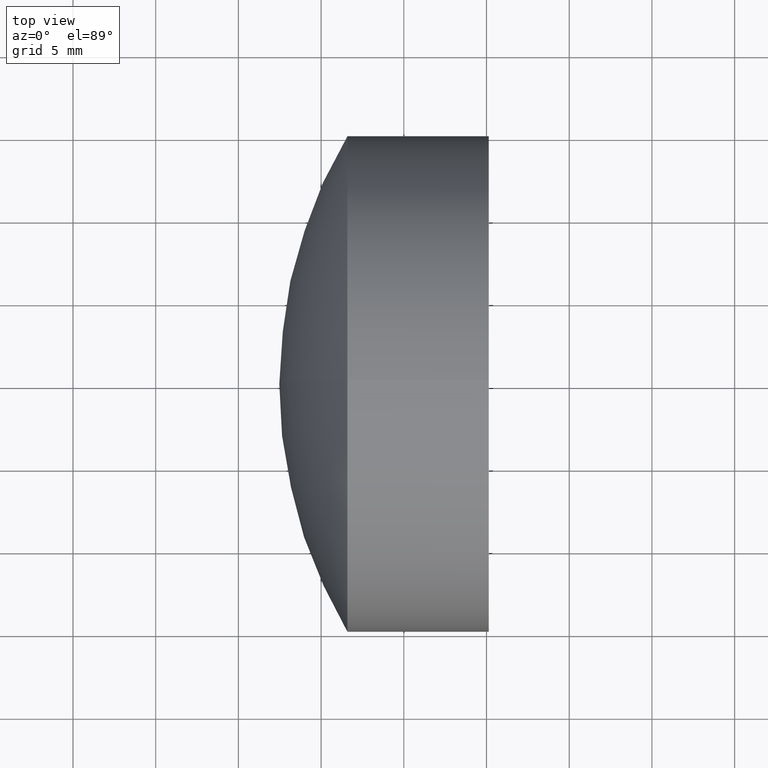
[diagram: clean part render]
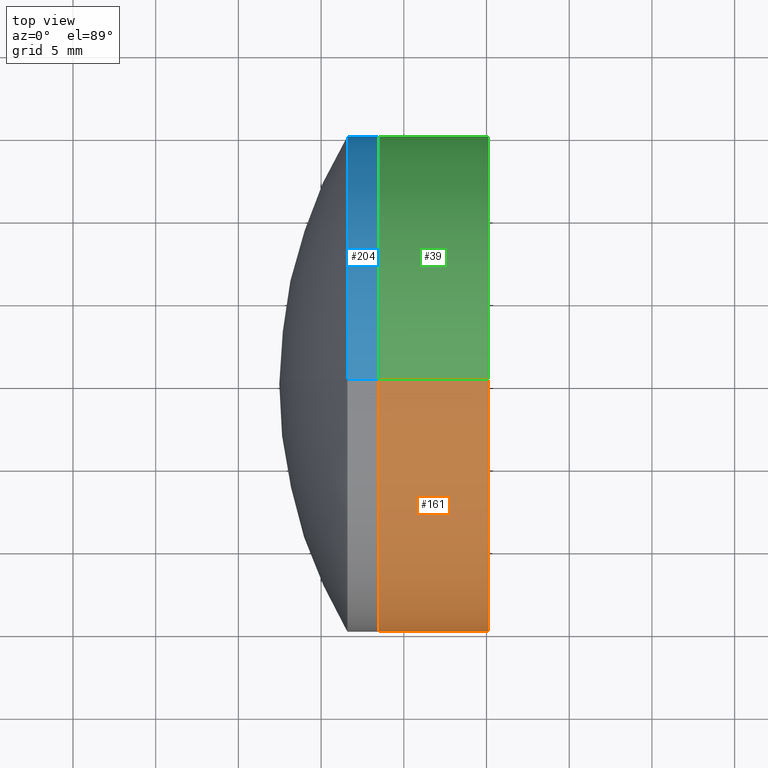
[diagram: same view with three faces highlighted in distinct colors, each labeled with its STEP entity id]
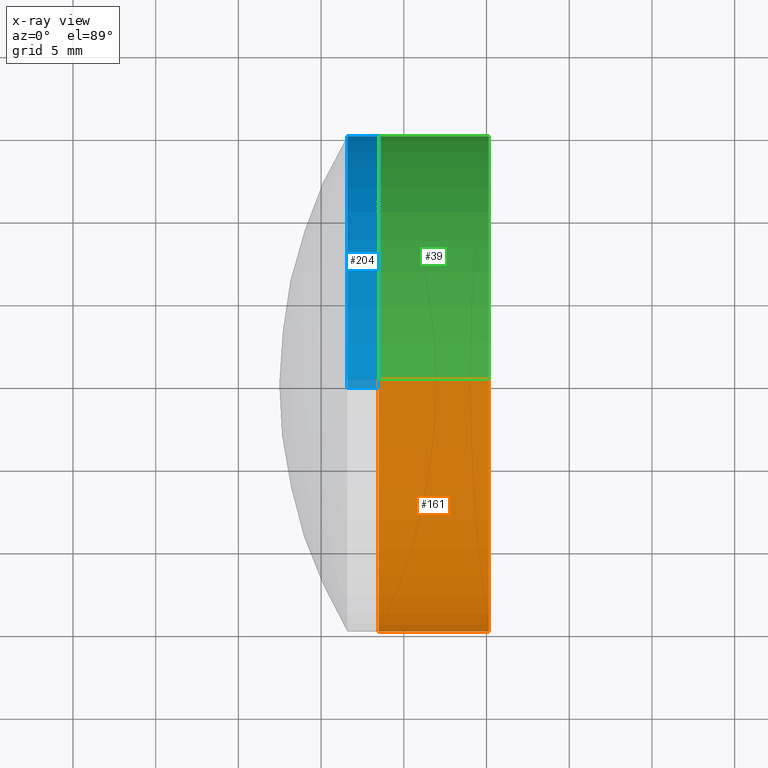
[diagram: x-ray of the same camera — body ghosted, the three highlighted faces saturated]
A machine part, top view with three faces highlighted in distinct colors.
The next image is the same camera in x-ray (body ghosted, the three faces saturated) — at least one of them is partly hidden behind the body in this view.
Their STEP definitions:

[orange] entity #161 — the highlighted cylindrical surface (partial cylindrical patch) has radius 15 mm, axis along (-1, -0, -0).
#4 = ORIENTED_EDGE ( 'NONE', *, *, #94, .F. ) ;
#11 = CARTESIAN_POINT ( 'NONE',  ( 105.1310777862640600, 0.0000000000000000000, -14.99999999999993600 ) ) ;
#19 = ORIENTED_EDGE ( 'NONE', *, *, #24, .T. ) ;
#21 = DIRECTION ( 'NONE',  ( -1.000000000000000000, -0.0000000000000000000, -0.0000000000000000000 ) ) ;
#24 = EDGE_CURVE ( 'NONE', #192, #129, #82, .T. ) ;
#43 = DIRECTION ( 'NONE',  ( -1.000000000000000000, -0.0000000000000000000, -0.0000000000000000000 ) ) ;
#54 = CARTESIAN_POINT ( 'NONE',  ( -0.5519199926577972300, 0.0000000000000000000, 15.00000000000000000 ) ) ;
#60 = CARTESIAN_POINT ( 'NONE',  ( 98.47493971991563900, 0.0000000000000000000, -15.00000000000000700 ) ) ;
#67 = DIRECTION ( 'NONE',  ( 0.0000000000000000000, 0.0000000000000000000, 1.000000000000000000 ) ) ;
#82 = CIRCLE ( 'NONE', #197, 15.00000000000000200 ) ;
#93 = CARTESIAN_POINT ( 'NONE',  ( 105.1310777862640600, 0.0000000000000000000, 0.0000000000000000000 ) ) ;
#94 = EDGE_CURVE ( 'NONE', #192, #230, #219, .T. ) ;
#121 = AXIS2_PLACEMENT_3D ( 'NONE', #206, #217, #218 ) ;
#123 = DIRECTION ( 'NONE',  ( -1.000000000000000000, -0.0000000000000000000, -0.0000000000000000000 ) ) ;
#124 = FACE_OUTER_BOUND ( 'NONE', #239, .T. ) ;
#129 = VERTEX_POINT ( 'NONE', #146 ) ;
#133 = CYLINDRICAL_SURFACE ( 'NONE', #333, 15.00000000000000000 ) ;
#134 = ORIENTED_EDGE ( 'NONE', *, *, #210, .T. ) ;
#136 = DIRECTION ( 'NONE',  ( -1.000000000000000000, -0.0000000000000000000, -0.0000000000000000000 ) ) ;
#146 = CARTESIAN_POINT ( 'NONE',  ( 105.1310777862640600, -1.836970198721021700E-015, 14.99999999999993600 ) ) ;
#149 = VERTEX_POINT ( 'NONE', #234 ) ;
#151 = DIRECTION ( 'NONE',  ( 0.0000000000000000000, 0.0000000000000000000, 1.000000000000000000 ) ) ;
#161 = ADVANCED_FACE ( 'NONE', ( #124 ), #133, .T. ) ;
#184 = VECTOR ( 'NONE', #21, 1000.000000000000000 ) ;
#192 = VERTEX_POINT ( 'NONE', #11 ) ;
#197 = AXIS2_PLACEMENT_3D ( 'NONE', #93, #123, #67 ) ;
#201 = CIRCLE ( 'NONE', #121, 15.00000000000000000 ) ;
#206 = CARTESIAN_POINT ( 'NONE',  ( 98.47493971991563900, 0.0000000000000000000, 0.0000000000000000000 ) ) ;
#210 = EDGE_CURVE ( 'NONE', #129, #149, #269, .T. ) ;
#217 = DIRECTION ( 'NONE',  ( -1.000000000000000000, -0.0000000000000000000, -0.0000000000000000000 ) ) ;
#218 = DIRECTION ( 'NONE',  ( 0.0000000000000000000, 0.0000000000000000000, 1.000000000000000000 ) ) ;
#219 = LINE ( 'NONE', #288, #184 ) ;
#230 = VERTEX_POINT ( 'NONE', #60 ) ;
#234 = CARTESIAN_POINT ( 'NONE',  ( 98.47493971991563900, -1.836970198721030400E-015, 15.00000000000000700 ) ) ;
#239 = EDGE_LOOP ( 'NONE', ( #4, #19, #134, #307 ) ) ;
#255 = EDGE_CURVE ( 'NONE', #230, #149, #201, .T. ) ;
#269 = LINE ( 'NONE', #54, #327 ) ;
#273 = CARTESIAN_POINT ( 'NONE',  ( -0.5519199926577972300, 0.0000000000000000000, 0.0000000000000000000 ) ) ;
#288 = CARTESIAN_POINT ( 'NONE',  ( -0.5519199926577972300, 1.836970198721029600E-015, -15.00000000000000000 ) ) ;
#307 = ORIENTED_EDGE ( 'NONE', *, *, #255, .F. ) ;
#327 = VECTOR ( 'NONE', #43, 1000.000000000000000 ) ;
#333 = AXIS2_PLACEMENT_3D ( 'NONE', #273, #136, #151 ) ;

[blue] entity #204 — the highlighted cylindrical surface (partial cylindrical patch) has radius 15 mm, axis along (-1, -0, -0).
#6 = EDGE_CURVE ( 'NONE', #261, #341, #16, .T. ) ;
#16 = LINE ( 'NONE', #304, #155 ) ;
#22 = DIRECTION ( 'NONE',  ( 0.0000000000000000000, 0.0000000000000000000, 1.000000000000000000 ) ) ;
#23 = AXIS2_PLACEMENT_3D ( 'NONE', #227, #240, #153 ) ;
#33 = CARTESIAN_POINT ( 'NONE',  ( -0.8160621761658039000, 0.0000000000000000000, 0.0000000000000000000 ) ) ;
#38 = DIRECTION ( 'NONE',  ( -1.000000000000000000, -0.0000000000000000000, -0.0000000000000000000 ) ) ;
#41 = AXIS2_PLACEMENT_3D ( 'NONE', #33, #38, #22 ) ;
#53 = CIRCLE ( 'NONE', #342, 14.99999999999999600 ) ;
#59 = CARTESIAN_POINT ( 'NONE',  ( 96.59065489886367600, 0.0000000000000000000, 14.99999999999999300 ) ) ;
#61 = ORIENTED_EDGE ( 'NONE', *, *, #300, .F. ) ;
#75 = ORIENTED_EDGE ( 'NONE', *, *, #6, .T. ) ;
#81 = EDGE_CURVE ( 'NONE', #179, #341, #53, .T. ) ;
#83 = CYLINDRICAL_SURFACE ( 'NONE', #41, 14.99999999999999800 ) ;
#106 = DIRECTION ( 'NONE',  ( -1.000000000000000000, -0.0000000000000000000, -0.0000000000000000000 ) ) ;
#110 = CARTESIAN_POINT ( 'NONE',  ( 96.59065489886367600, 1.836970198721028800E-015, -14.99999999999999600 ) ) ;
#153 = DIRECTION ( 'NONE',  ( 0.0000000000000000000, 0.0000000000000000000, 1.000000000000000000 ) ) ;
#155 = VECTOR ( 'NONE', #237, 1000.000000000000000 ) ;
#173 = CARTESIAN_POINT ( 'NONE',  ( 98.47493971991563900, 1.836970198721030000E-015, -15.00000000000000200 ) ) ;
#179 = VERTEX_POINT ( 'NONE', #59 ) ;
#191 = VERTEX_POINT ( 'NONE', #249 ) ;
#200 = DIRECTION ( 'NONE',  ( 0.0000000000000000000, 0.0000000000000000000, 1.000000000000000000 ) ) ;
#203 = VECTOR ( 'NONE', #282, 1000.000000000000000 ) ;
#204 = ADVANCED_FACE ( 'NONE', ( #233 ), #83, .T. ) ;
#211 = LINE ( 'NONE', #347, #203 ) ;
#220 = ORIENTED_EDGE ( 'NONE', *, *, #257, .T. ) ;
#227 = CARTESIAN_POINT ( 'NONE',  ( 98.47493971991563900, 0.0000000000000000000, 0.0000000000000000000 ) ) ;
#233 = FACE_OUTER_BOUND ( 'NONE', #318, .T. ) ;
#237 = DIRECTION ( 'NONE',  ( -1.000000000000000000, -0.0000000000000000000, -0.0000000000000000000 ) ) ;
#240 = DIRECTION ( 'NONE',  ( -1.000000000000000000, -0.0000000000000000000, -0.0000000000000000000 ) ) ;
#245 = ORIENTED_EDGE ( 'NONE', *, *, #81, .F. ) ;
#249 = CARTESIAN_POINT ( 'NONE',  ( 98.47493971991563900, 0.0000000000000000000, 15.00000000000000000 ) ) ;
#257 = EDGE_CURVE ( 'NONE', #191, #261, #345, .T. ) ;
#261 = VERTEX_POINT ( 'NONE', #173 ) ;
#282 = DIRECTION ( 'NONE',  ( -1.000000000000000000, -0.0000000000000000000, -0.0000000000000000000 ) ) ;
#300 = EDGE_CURVE ( 'NONE', #191, #179, #211, .T. ) ;
#304 = CARTESIAN_POINT ( 'NONE',  ( -0.8160621761658039000, 1.836970198721029600E-015, -14.99999999999999800 ) ) ;
#315 = CARTESIAN_POINT ( 'NONE',  ( 96.59065489886367600, 0.0000000000000000000, 0.0000000000000000000 ) ) ;
#318 = EDGE_LOOP ( 'NONE', ( #220, #75, #245, #61 ) ) ;
#341 = VERTEX_POINT ( 'NONE', #110 ) ;
#342 = AXIS2_PLACEMENT_3D ( 'NONE', #315, #106, #200 ) ;
#345 = CIRCLE ( 'NONE', #23, 15.00000000000000000 ) ;
#347 = CARTESIAN_POINT ( 'NONE',  ( -0.8160621761658039000, 0.0000000000000000000, 14.99999999999999800 ) ) ;

[green] entity #39 — the highlighted cylindrical surface (partial cylindrical patch) has radius 15 mm, axis along (-1, -0, -0).
#11 = CARTESIAN_POINT ( 'NONE',  ( 105.1310777862640600, 0.0000000000000000000, -14.99999999999993600 ) ) ;
#18 = AXIS2_PLACEMENT_3D ( 'NONE', #256, #271, #301 ) ;
#21 = DIRECTION ( 'NONE',  ( -1.000000000000000000, -0.0000000000000000000, -0.0000000000000000000 ) ) ;
#36 = DIRECTION ( 'NONE',  ( 0.0000000000000000000, 0.0000000000000000000, 1.000000000000000000 ) ) ;
#39 = ADVANCED_FACE ( 'NONE', ( #158 ), #166, .T. ) ;
#42 = ORIENTED_EDGE ( 'NONE', *, *, #262, .F. ) ;
#43 = DIRECTION ( 'NONE',  ( -1.000000000000000000, -0.0000000000000000000, -0.0000000000000000000 ) ) ;
#47 = AXIS2_PLACEMENT_3D ( 'NONE', #272, #86, #154 ) ;
#54 = CARTESIAN_POINT ( 'NONE',  ( -0.5519199926577972300, 0.0000000000000000000, 15.00000000000000000 ) ) ;
#60 = CARTESIAN_POINT ( 'NONE',  ( 98.47493971991563900, 0.0000000000000000000, -15.00000000000000700 ) ) ;
#86 = DIRECTION ( 'NONE',  ( -1.000000000000000000, -0.0000000000000000000, -0.0000000000000000000 ) ) ;
#94 = EDGE_CURVE ( 'NONE', #192, #230, #219, .T. ) ;
#96 = ORIENTED_EDGE ( 'NONE', *, *, #94, .T. ) ;
#129 = VERTEX_POINT ( 'NONE', #146 ) ;
#146 = CARTESIAN_POINT ( 'NONE',  ( 105.1310777862640600, -1.836970198721021700E-015, 14.99999999999993600 ) ) ;
#149 = VERTEX_POINT ( 'NONE', #234 ) ;
#150 = EDGE_CURVE ( 'NONE', #129, #192, #340, .T. ) ;
#154 = DIRECTION ( 'NONE',  ( 0.0000000000000000000, 0.0000000000000000000, 1.000000000000000000 ) ) ;
#158 = FACE_OUTER_BOUND ( 'NONE', #225, .T. ) ;
#166 = CYLINDRICAL_SURFACE ( 'NONE', #185, 15.00000000000000000 ) ;
#168 = DIRECTION ( 'NONE',  ( -1.000000000000000000, -0.0000000000000000000, -0.0000000000000000000 ) ) ;
#184 = VECTOR ( 'NONE', #21, 1000.000000000000000 ) ;
#185 = AXIS2_PLACEMENT_3D ( 'NONE', #188, #168, #36 ) ;
#186 = ORIENTED_EDGE ( 'NONE', *, *, #150, .T. ) ;
#188 = CARTESIAN_POINT ( 'NONE',  ( -0.5519199926577972300, 0.0000000000000000000, 0.0000000000000000000 ) ) ;
#192 = VERTEX_POINT ( 'NONE', #11 ) ;
#196 = CIRCLE ( 'NONE', #18, 15.00000000000000000 ) ;
#207 = ORIENTED_EDGE ( 'NONE', *, *, #210, .F. ) ;
#210 = EDGE_CURVE ( 'NONE', #129, #149, #269, .T. ) ;
#219 = LINE ( 'NONE', #288, #184 ) ;
#225 = EDGE_LOOP ( 'NONE', ( #186, #96, #42, #207 ) ) ;
#230 = VERTEX_POINT ( 'NONE', #60 ) ;
#234 = CARTESIAN_POINT ( 'NONE',  ( 98.47493971991563900, -1.836970198721030400E-015, 15.00000000000000700 ) ) ;
#256 = CARTESIAN_POINT ( 'NONE',  ( 98.47493971991563900, 0.0000000000000000000, 0.0000000000000000000 ) ) ;
#262 = EDGE_CURVE ( 'NONE', #149, #230, #196, .T. ) ;
#269 = LINE ( 'NONE', #54, #327 ) ;
#271 = DIRECTION ( 'NONE',  ( -1.000000000000000000, -0.0000000000000000000, -0.0000000000000000000 ) ) ;
#272 = CARTESIAN_POINT ( 'NONE',  ( 105.1310777862640600, 0.0000000000000000000, 0.0000000000000000000 ) ) ;
#288 = CARTESIAN_POINT ( 'NONE',  ( -0.5519199926577972300, 1.836970198721029600E-015, -15.00000000000000000 ) ) ;
#301 = DIRECTION ( 'NONE',  ( 0.0000000000000000000, 0.0000000000000000000, 1.000000000000000000 ) ) ;
#327 = VECTOR ( 'NONE', #43, 1000.000000000000000 ) ;
#340 = CIRCLE ( 'NONE', #47, 15.00000000000000200 ) ;